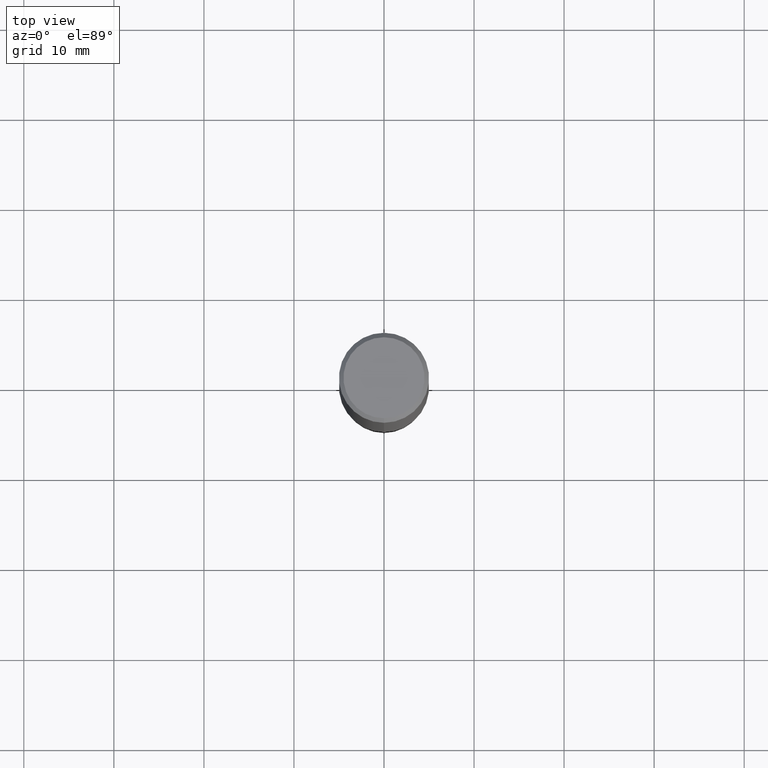
[diagram: clean part render]
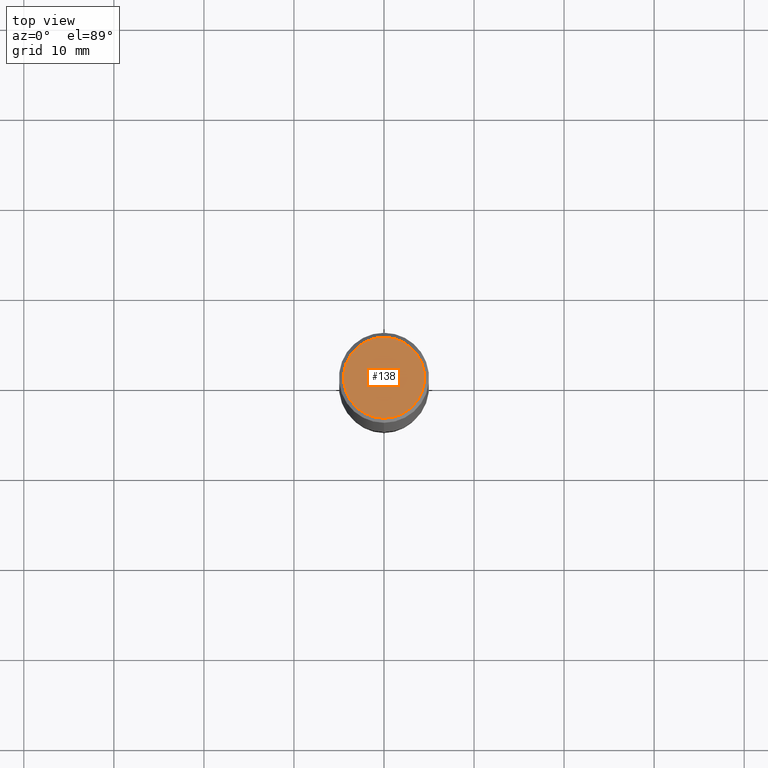
[diagram: same view with one face highlighted and labeled with its STEP entity id]
A machine part, top view. The second image highlights one B-rep face of the part: STEP entity #138.
In plain terms, the highlighted planar face has unit normal (-0, 0, 1).
Its self-contained STEP definition (entity closure, byte-faithful):
#104=VERTEX_POINT('',#226);
#108=EDGE_CURVE('',#124,#104,#230,.T.);
#124=VERTEX_POINT('',#250);
#126=EDGE_CURVE('',#104,#124,#252,.T.);
#138=ADVANCED_FACE('',(#267),#268,.T.);
#226=CARTESIAN_POINT('',(0.0,4.5,0.0));
#230=CIRCLE('',#363,4.5);
#250=CARTESIAN_POINT('',(5.5107285922007E-016,-4.5,0.0));
#252=CIRCLE('',#387,4.5);
#267=FACE_OUTER_BOUND('',#406,.T.);
#268=PLANE('',#407);
#363=AXIS2_PLACEMENT_3D('',#497,#498,#499);
#387=AXIS2_PLACEMENT_3D('',#535,#536,#537);
#406=EDGE_LOOP('',(#561,#562));
#407=AXIS2_PLACEMENT_3D('',#563,#564,#565);
#497=CARTESIAN_POINT('',(0.0,0.0,0.0));
#498=DIRECTION('',(0.0,0.0,-1.0));
#499=DIRECTION('',(0.0,1.0,0.0));
#535=CARTESIAN_POINT('',(0.0,0.0,0.0));
#536=DIRECTION('',(0.0,0.0,-1.0));
#537=DIRECTION('',(0.0,1.0,0.0));
#561=ORIENTED_EDGE('',*,*,#126,.F.);
#562=ORIENTED_EDGE('',*,*,#108,.F.);
#563=CARTESIAN_POINT('',(0.0,2.25,0.0));
#564=DIRECTION('',(-0.0,0.0,1.0));
#565=DIRECTION('',(0.0,-1.0,0.0));